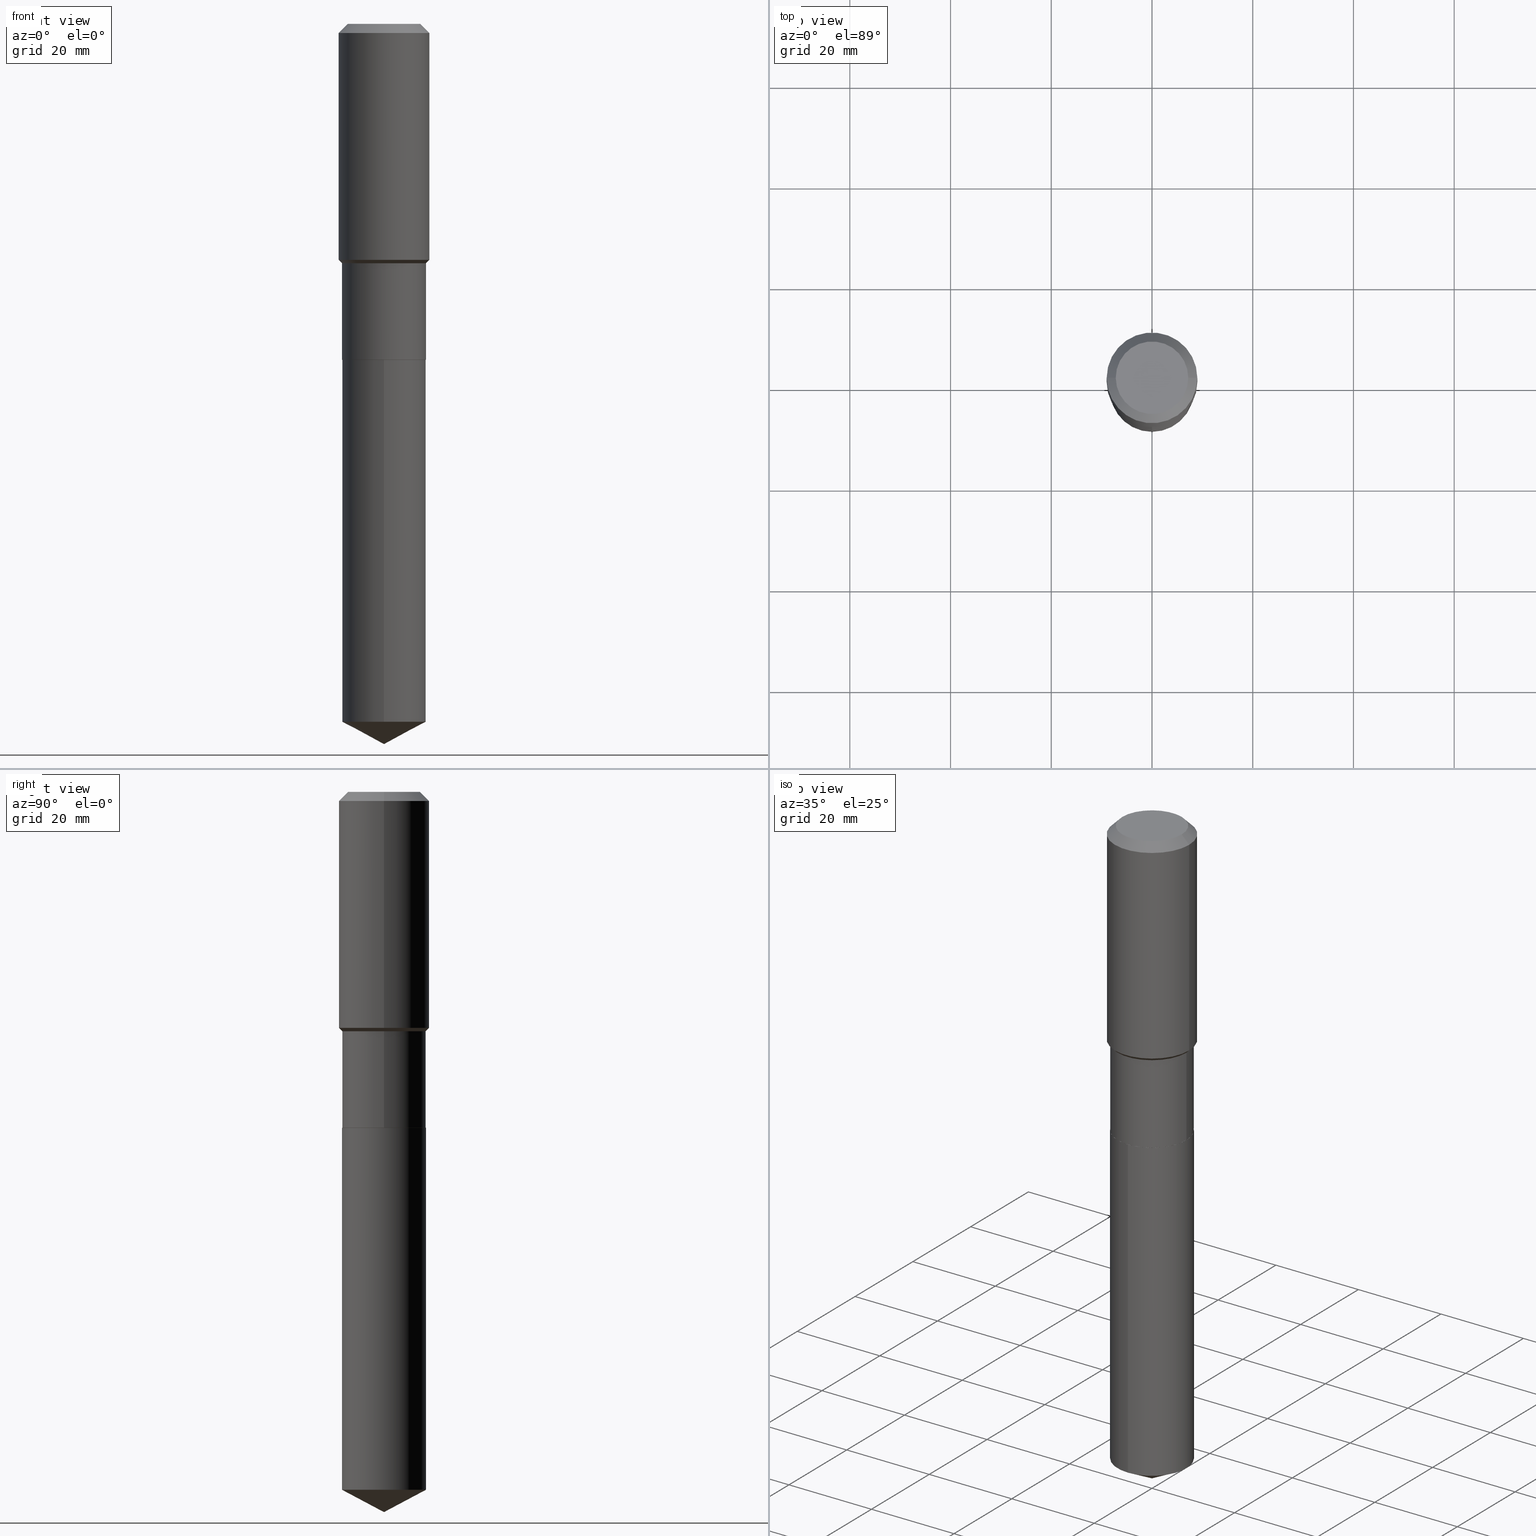
[diagram: canonical four-view strip — front | top / right | iso, engineering-drawing reading convention]
A machine part, canonical four-view strip (front | top / right | iso — engineering-drawing reading convention). The complete STEP part file that produces these views, byte-faithful:
ISO-10303-21;
HEADER;
FILE_DESCRIPTION (( 'STEP AP203' ),
    '1' );
FILE_NAME ('54833.STEP',
    '2024-04-24T16:07:48',
    ( '' ),
    ( '' ),
    'SwSTEP 2.0',
    'SolidWorks 2023',
    '' );
FILE_SCHEMA (( 'CONFIG_CONTROL_DESIGN' ));
ENDSEC;

DATA;
#1 = FACE_OUTER_BOUND ( 'NONE', #313, .T. ) ;
#2 = APPROVAL ( #112, 'UNSPECIFIED' ) ;
#3 = CIRCLE ( 'NONE', #115, 0.3280999999999998917 ) ;
#4 = LINE ( 'NONE', #305, #32 ) ;
#5 = ORIENTED_EDGE ( 'NONE', *, *, #123, .F. ) ;
#6 = ADVANCED_BREP_SHAPE_REPRESENTATION ( '54833', ( #314, #159, #14 ), #61 ) ;
#7 = CYLINDRICAL_SURFACE ( 'NONE', #278, 0.3281000000000000028 ) ;
#8 = ORIENTED_EDGE ( 'NONE', *, *, #477, .T. ) ;
#9 = VECTOR ( 'NONE', #478, 39.37007874015748854 ) ;
#10 = FACE_OUTER_BOUND ( 'NONE', #207, .T. ) ;
#11 = EDGE_CURVE ( 'NONE', #171, #158, #235, .T. ) ;
#12 = AXIS2_PLACEMENT_3D ( 'NONE', #274, #349, #18 ) ;
#13 = EDGE_LOOP ( 'NONE', ( #489, #146, #420, #275 ) ) ;
#14 = AXIS2_PLACEMENT_3D ( 'NONE', #228, #454, #223 ) ;
#15 = DIRECTION ( 'NONE',  ( 1.000000000000000000, -6.982962677686266711E-15, 4.876176775795935232E-29 ) ) ;
#16 = EDGE_CURVE ( 'NONE', #318, #209, #219, .T. ) ;
#17 = VERTEX_POINT ( 'NONE', #21 ) ;
#18 = DIRECTION ( 'NONE',  ( 1.000000000000000000, -6.982962677686269077E-15, 0.000000000000000000 ) ) ;
#19 = ORIENTED_EDGE ( 'NONE', *, *, #58, .F. ) ;
#20 = LINE ( 'NONE', #326, #463 ) ;
#21 = CARTESIAN_POINT ( 'NONE',  ( 1.376726645360118068E-28, -1.965807520774992515E-14, -5.629999999999999893 ) ) ;
#22 = AXIS2_PLACEMENT_3D ( 'NONE', #176, #97, #364 ) ;
#23 = ADVANCED_FACE ( 'NONE', ( #135 ), #203, .T. ) ;
#24 = FACE_OUTER_BOUND ( 'NONE', #469, .T. ) ;
#25 = CARTESIAN_POINT ( 'NONE',  ( -9.439721640706191963E-47, 1.347742071746725396E-32, 3.860086710912455110E-18 ) ) ;
#26 = EDGE_LOOP ( 'NONE', ( #285, #416, #5 ) ) ;
#27 = CC_DESIGN_PERSON_AND_ORGANIZATION_ASSIGNMENT ( #259, #452, ( #451 ) ) ;
#28 = DIRECTION ( 'NONE',  ( 0.7071067811865453523, -7.319954787623248157E-15, -0.7071067811865496822 ) ) ;
#29 = ORIENTED_EDGE ( 'NONE', *, *, #377, .T. ) ;
#30 = ADVANCED_FACE ( 'NONE', ( #66 ), #121, .T. ) ;
#31 = AXIS2_PLACEMENT_3D ( 'NONE', #63, #252, #447 ) ;
#32 = VECTOR ( 'NONE', #461, 39.37007874015748143 ) ;
#33 = CARTESIAN_POINT ( 'NONE',  ( 1.733103742943417062E-30, -2.474412824838152853E-16, -0.07087000000000043265 ) ) ;
#34 = LINE ( 'NONE', #437, #140 ) ;
#35 = CC_DESIGN_DATE_AND_TIME_ASSIGNMENT ( #264, #77, ( #361 ) ) ;
#36 = APPLICATION_PROTOCOL_DEFINITION ( 'international standard', 'config_control_design', 1994, #37 ) ;
#37 = APPLICATION_CONTEXT ( 'configuration controlled 3d designs of mechanical parts and assemblies' ) ;
#38 = AXIS2_PLACEMENT_3D ( 'NONE', #396, #443, #213 ) ;
#39 = EDGE_CURVE ( 'NONE', #202, #85, #34, .T. ) ;
#40 = AXIS2_PLACEMENT_3D ( 'NONE', #401, #315, #395 ) ;
#41 = CARTESIAN_POINT ( 'NONE',  ( 0.000000000000000000, 0.000000000000000000, 0.000000000000000000 ) ) ;
#42 = VERTEX_POINT ( 'NONE', #215 ) ;
#43 = LOCAL_TIME ( 12, 7, 48.00000000000000000, #104 ) ;
#44 = CARTESIAN_POINT ( 'NONE',  ( 1.733103742943417062E-30, -2.474412824838152853E-16, -0.07087000000000043265 ) ) ;
#45 = ORIENTED_EDGE ( 'NONE', *, *, #419, .F. ) ;
#46 = ADVANCED_FACE ( 'NONE', ( #24 ), #310, .T. ) ;
#47 = DIRECTION ( 'NONE',  ( 2.445468806185136597E-29, -3.491481338843145583E-15, -1.000000000000000000 ) ) ;
#48 = ORIENTED_EDGE ( 'NONE', *, *, #114, .F. ) ;
#49 = DIRECTION ( 'NONE',  ( -2.445468806185136597E-29, 3.491481338843145583E-15, 1.000000000000000000 ) ) ;
#50 = AXIS2_PLACEMENT_3D ( 'NONE', #44, #47, #199 ) ;
#51 = ORIENTED_EDGE ( 'NONE', *, *, #162, .T. ) ;
#52 = VECTOR ( 'NONE', #139, 39.37007874015748143 ) ;
#53 = CYLINDRICAL_SURFACE ( 'NONE', #221, 0.3281000000000000028 ) ;
#54 = ORIENTED_EDGE ( 'NONE', *, *, #308, .F. ) ;
#55 = PRODUCT ( '54833', '54833', '', ( #293 ) ) ;
#56 = DIRECTION ( 'NONE',  ( -2.445468806185136597E-29, 3.491481338843145583E-15, 1.000000000000000000 ) ) ;
#57 = VERTEX_POINT ( 'NONE', #475 ) ;
#58 = EDGE_CURVE ( 'NONE', #164, #57, #88, .T. ) ;
#59 = VERTEX_POINT ( 'NONE', #331 ) ;
#60 = AXIS2_PLACEMENT_3D ( 'NONE', #188, #110, #334 ) ;
#61 =( GEOMETRIC_REPRESENTATION_CONTEXT ( 3 ) GLOBAL_UNCERTAINTY_ASSIGNED_CONTEXT ( ( #271 ) ) GLOBAL_UNIT_ASSIGNED_CONTEXT ( ( #476, #373, #149 ) ) REPRESENTATION_CONTEXT ( 'NONE', 'WORKASPACE' ) );
#62 = DIRECTION ( 'NONE',  ( -2.445340400284401778E-29, 3.491665223401407561E-15, 1.000000000000000000 ) ) ;
#63 = CARTESIAN_POINT ( 'NONE',  ( 6.419844709997221136E-29, -9.165836810731026791E-15, -2.625199999999999978 ) ) ;
#64 = ADVANCED_FACE ( 'NONE', ( #480 ), #155, .T. ) ;
#65 = CARTESIAN_POINT ( 'NONE',  ( -0.3280999999999998917, -5.516337315221906286E-15, -1.870600000000000041 ) ) ;
#66 = FACE_OUTER_BOUND ( 'NONE', #296, .T. ) ;
#67 = CARTESIAN_POINT ( 'NONE',  ( 0.000000000000000000, 0.000000000000000000, 0.000000000000000000 ) ) ;
#68 = DIRECTION ( 'NONE',  ( -0.7071067811865474617, 7.493145998870352582E-15, 0.7071067811865474617 ) ) ;
#69 = AXIS2_PLACEMENT_3D ( 'NONE', #33, #257, #95 ) ;
#70 = PERSON_AND_ORGANIZATION_ROLE ( 'design_owner' ) ;
#71 = FACE_OUTER_BOUND ( 'NONE', #343, .T. ) ;
#72 = COORDINATED_UNIVERSAL_TIME_OFFSET ( 5, 0, .BEHIND. ) ;
#73 = ORIENTED_EDGE ( 'NONE', *, *, #290, .T. ) ;
#74 = PERSON_AND_ORGANIZATION ( #356, #125 ) ;
#75 = CARTESIAN_POINT ( 'NONE',  ( -8.250564056091332226E-28, 1.178095423055754312E-13, 33.74007874015748598 ) ) ;
#76 = CIRCLE ( 'NONE', #456, 0.3281000000000000028 ) ;
#77 = DATE_TIME_ROLE ( 'classification_date' ) ;
#78 = DIRECTION ( 'NONE',  ( -2.445468806185136597E-29, 3.491481338843145583E-15, 1.000000000000000000 ) ) ;
#79 = EDGE_CURVE ( 'NONE', #209, #309, #166, .T. ) ;
#80 = EDGE_CURVE ( 'NONE', #17, #268, #247, .T. ) ;
#81 = DIRECTION ( 'NONE',  ( -2.445468806185136597E-29, 3.491481338843145583E-15, 1.000000000000000000 ) ) ;
#82 = AXIS2_PLACEMENT_3D ( 'NONE', #321, #292, #483 ) ;
#83 = DIRECTION ( 'NONE',  ( -2.445468806185136597E-29, 3.491481338843145583E-15, 1.000000000000000000 ) ) ;
#84 = EDGE_LOOP ( 'NONE', ( #244, #467, #133, #345 ) ) ;
#85 = VERTEX_POINT ( 'NONE', #103 ) ;
#86 = DIRECTION ( 'NONE',  ( -6.982962677686265133E-15, -1.000000000000000000, 3.330506545156066257E-15 ) ) ;
#87 = ORIENTED_EDGE ( 'NONE', *, *, #256, .T. ) ;
#88 = CIRCLE ( 'NONE', #367, 0.3276000000000000023 ) ;
#89 = DIRECTION ( 'NONE',  ( 0.7071067811865474617, -2.468850131082256666E-15, 0.7071067811865474617 ) ) ;
#90 = CIRCLE ( 'NONE', #439, 0.3276000000000000023 ) ;
#91 = EDGE_LOOP ( 'NONE', ( #409, #217, #270, #54 ) ) ;
#92 = DIRECTION ( 'NONE',  ( 0.7071067811860163310, -2.468850131076692830E-15, 0.7071067811870787034 ) ) ;
#93 = ADVANCED_FACE ( 'NONE', ( #486 ), #394, .T. ) ;
#94 = ORIENTED_EDGE ( 'NONE', *, *, #288, .F. ) ;
#95 = DIRECTION ( 'NONE',  ( 1.000000000000000000, -6.982962677686266711E-15, 0.000000000000000000 ) ) ;
#96 = DIRECTION ( 'NONE',  ( -2.445340400284401778E-29, 3.491665223401407956E-15, 1.000000000000000000 ) ) ;
#97 = DIRECTION ( 'NONE',  ( -2.445468806185136597E-29, 3.491481338843145583E-15, 1.000000000000000000 ) ) ;
#98 = ADVANCED_FACE ( 'NONE', ( #113 ), #301, .T. ) ;
#99 = LOCAL_TIME ( 12, 7, 48.00000000000000000, #72 ) ;
#100 = LINE ( 'NONE', #397, #381 ) ;
#101 = ORIENTED_EDGE ( 'NONE', *, *, #11, .T. ) ;
#102 = DIRECTION ( 'NONE',  ( -0.7071067811860163310, 7.493145998868434073E-15, 0.7071067811870787034 ) ) ;
#103 = CARTESIAN_POINT ( 'NONE',  ( 0.3280999999999998917, -8.822275046988852801E-15, -1.870600000000000041 ) ) ;
#104 = COORDINATED_UNIVERSAL_TIME_OFFSET ( 5, 0, .BEHIND. ) ;
#105 = PERSON_AND_ORGANIZATION ( #356, #125 ) ;
#106 = CC_DESIGN_APPROVAL ( #433, ( #361 ) ) ;
#107 = DIRECTION ( 'NONE',  ( 1.000000000000000000, -6.982962677686265922E-15, 4.876176775795935793E-29 ) ) ;
#108 = ADVANCED_FACE ( 'NONE', ( #455 ), #130, .T. ) ;
#109 = SECURITY_CLASSIFICATION_LEVEL ( 'unclassified' ) ;
#110 = DIRECTION ( 'NONE',  ( 2.438088387897960049E-29, -3.491481338843145188E-15, -1.000000000000000000 ) ) ;
#111 = CC_DESIGN_PERSON_AND_ORGANIZATION_ASSIGNMENT ( #151, #70, ( #55 ) ) ;
#112 = APPROVAL_STATUS ( 'not_yet_approved' ) ;
#113 = FACE_OUTER_BOUND ( 'NONE', #277, .T. ) ;
#114 = EDGE_CURVE ( 'NONE', #202, #174, #148, .T. ) ;
#115 = AXIS2_PLACEMENT_3D ( 'NONE', #458, #160, #122 ) ;
#116 = CARTESIAN_POINT ( 'NONE',  ( 3.362497591358698235E-29, -1.354413189801272439E-14, -2.625199999999999978 ) ) ;
#117 = CC_DESIGN_PERSON_AND_ORGANIZATION_ASSIGNMENT ( #185, #412, ( #361 ) ) ;
#118 = ORIENTED_EDGE ( 'NONE', *, *, #172, .T. ) ;
#119 = FACE_OUTER_BOUND ( 'NONE', #323, .T. ) ;
#120 = ORIENTED_EDGE ( 'NONE', *, *, #190, .F. ) ;
#121 = CONICAL_SURFACE ( 'NONE', #22, 0.3280999999999998917, 0.7853981633974482790 ) ;
#122 = DIRECTION ( 'NONE',  ( 1.000000000000000000, -6.982962677686269077E-15, 0.000000000000000000 ) ) ;
#123 = EDGE_CURVE ( 'NONE', #268, #380, #418, .T. ) ;
#124 = ORIENTED_EDGE ( 'NONE', *, *, #290, .F. ) ;
#125 = ORGANIZATION ( 'UNSPECIFIED', 'UNSPECIFIED', '' ) ;
#126 = PLANE ( 'NONE',  #390 ) ;
#127 = ORIENTED_EDGE ( 'NONE', *, *, #484, .T. ) ;
#128 = CARTESIAN_POINT ( 'NONE',  ( -2.291110054548730797E-15, -0.3281000000000190986, -5.455546135471868396 ) ) ;
#129 = ORIENTED_EDGE ( 'NONE', *, *, #353, .T. ) ;
#130 = CONICAL_SURFACE ( 'NONE', #193, 74.04434902938363905, 1.082104136236487157 ) ;
#131 = LENGTH_MEASURE_WITH_UNIT ( LENGTH_MEASURE( 0.02539999999999999897 ), #468 );
#132 = CIRCLE ( 'NONE', #195, 0.3281000000000000028 ) ;
#133 = ORIENTED_EDGE ( 'NONE', *, *, #180, .F. ) ;
#134 = LINE ( 'NONE', #393, #375 ) ;
#135 = FACE_OUTER_BOUND ( 'NONE', #91, .T. ) ;
#136 = DIRECTION ( 'NONE',  ( -2.445468806185136597E-29, 3.491481338843145583E-15, 1.000000000000000000 ) ) ;
#137 = VERTEX_POINT ( 'NONE', #450 ) ;
#138 = ADVANCED_FACE ( 'NONE', ( #71 ), #413, .T. ) ;
#139 = DIRECTION ( 'NONE',  ( -2.445340400284401778E-29, 3.491665223401407561E-15, 1.000000000000000000 ) ) ;
#140 = VECTOR ( 'NONE', #398, 39.37007874015748143 ) ;
#141 = CARTESIAN_POINT ( 'NONE',  ( 1.733103742943417062E-30, -2.474412824838152853E-16, -0.07087000000000043265 ) ) ;
#142 = CIRCLE ( 'NONE', #12, 0.3280999999999998917 ) ;
#143 = CYLINDRICAL_SURFACE ( 'NONE', #430, 0.3543500000000001648 ) ;
#144 = CARTESIAN_POINT ( 'NONE',  ( 1.376726645360117844E-28, -1.965807520774992830E-14, -5.629999999999999893 ) ) ;
#145 = CALENDAR_DATE ( 2024, 24, 4 ) ;
#146 = ORIENTED_EDGE ( 'NONE', *, *, #16, .T. ) ;
#147 = DATE_AND_TIME ( #145, #328 ) ;
#148 = CIRCLE ( 'NONE', #470, 0.3281000000000000028 ) ;
#149 =( NAMED_UNIT ( * ) SI_UNIT ( $, .STERADIAN. ) SOLID_ANGLE_UNIT ( ) );
#150 = DIRECTION ( 'NONE',  ( -6.982962677686267499E-15, -1.000000000000000000, 3.541896320645556136E-15 ) ) ;
#151 = PERSON_AND_ORGANIZATION ( #356, #125 ) ;
#152 = DIRECTION ( 'NONE',  ( -6.982962677686265133E-15, -1.000000000000000000, 3.330506545156066257E-15 ) ) ;
#153 = ADVANCED_FACE ( 'NONE', ( #1 ), #154, .F. ) ;
#154 = PLANE ( 'NONE',  #60 ) ;
#155 = CONICAL_SURFACE ( 'NONE', #218, 0.3543499999999999983, 0.7853981633974452814 ) ;
#156 = CIRCLE ( 'NONE', #69, 0.3543499999999999983 ) ;
#157 = LOCAL_TIME ( 12, 7, 48.00000000000000000, #295 ) ;
#158 = VERTEX_POINT ( 'NONE', #488 ) ;
#159 = MANIFOLD_SOLID_BREP ( 'Body-Move/Copy2[2]', #448 ) ;
#160 = DIRECTION ( 'NONE',  ( -2.445468806185136597E-29, 3.491481338843145583E-15, 1.000000000000000000 ) ) ;
#161 = ORIENTED_EDGE ( 'NONE', *, *, #362, .T. ) ;
#162 = EDGE_CURVE ( 'NONE', #85, #309, #346, .T. ) ;
#163 = DIRECTION ( 'NONE',  ( -2.445340400284401778E-29, 3.491665223401407956E-15, 1.000000000000000000 ) ) ;
#164 = VERTEX_POINT ( 'NONE', #241 ) ;
#165 = DIMENSIONAL_EXPONENTS ( 1.000000000000000000, 0.000000000000000000, 0.000000000000000000, 0.000000000000000000, 0.000000000000000000, 0.000000000000000000, 0.000000000000000000 ) ;
#166 = CIRCLE ( 'NONE', #82, 0.3543500000000002204 ) ;
#167 = CIRCLE ( 'NONE', #481, 0.2834800000000000098 ) ;
#168 = ORIENTED_EDGE ( 'NONE', *, *, #80, .T. ) ;
#169 = VECTOR ( 'NONE', #62, 39.37007874015748143 ) ;
#170 = DIRECTION ( 'NONE',  ( 1.000000000000000000, -6.982962677686266711E-15, 4.876249319814053138E-29 ) ) ;
#171 = VERTEX_POINT ( 'NONE', #351 ) ;
#172 = EDGE_CURVE ( 'NONE', #309, #209, #265, .T. ) ;
#173 = CARTESIAN_POINT ( 'NONE',  ( 4.510300392687555505E-29, -6.439513607295354622E-15, -1.844349999999999712 ) ) ;
#174 = VERTEX_POINT ( 'NONE', #342 ) ;
#175 = DIRECTION ( 'NONE',  ( 6.982962677686265922E-15, 1.000000000000000000, -3.491665223401407561E-15 ) ) ;
#176 = CARTESIAN_POINT ( 'NONE',  ( 4.574493948849916372E-29, -6.531164992439988687E-15, -1.870600000000000041 ) ) ;
#177 = DIRECTION ( 'NONE',  ( -2.445468806185136597E-29, 3.491481338843145583E-15, 1.000000000000000000 ) ) ;
#178 = CARTESIAN_POINT ( 'NONE',  ( 6.419844709997221136E-29, -9.165836810731026791E-15, -2.625199999999999978 ) ) ;
#179 = DIRECTION ( 'NONE',  ( -2.445468806185136877E-29, 3.491481338843145188E-15, 1.000000000000000000 ) ) ;
#180 = EDGE_CURVE ( 'NONE', #85, #318, #3, .T. ) ;
#181 = ORIENTED_EDGE ( 'NONE', *, *, #16, .F. ) ;
#182 = DIRECTION ( 'NONE',  ( 1.000000000000000000, -6.982962677686269077E-15, 0.000000000000000000 ) ) ;
#183 = DIRECTION ( 'NONE',  ( 2.445468806185136597E-29, -3.491481338843145583E-15, -1.000000000000000000 ) ) ;
#184 = AXIS2_PLACEMENT_3D ( 'NONE', #344, #163, #307 ) ;
#185 = PERSON_AND_ORGANIZATION ( #356, #125 ) ;
#186 = DIRECTION ( 'NONE',  ( 1.000000000000000000, -6.982962677686264344E-15, 0.000000000000000000 ) ) ;
#187 = APPROVAL_STATUS ( 'not_yet_approved' ) ;
#188 = CARTESIAN_POINT ( 'NONE',  ( -4.719860820353095981E-47, 6.738710358733626979E-33, 1.930043355456227555E-18 ) ) ;
#189 = ORIENTED_EDGE ( 'NONE', *, *, #250, .F. ) ;
#190 = EDGE_CURVE ( 'NONE', #318, #85, #142, .T. ) ;
#191 = APPROVAL_DATE_TIME ( #147, #238 ) ;
#192 = CARTESIAN_POINT ( 'NONE',  ( 1.334100446185541204E-28, -1.904845798214671916E-14, -5.455546135471870173 ) ) ;
#193 = AXIS2_PLACEMENT_3D ( 'NONE', #75, #408, #150 ) ;
#194 = DESIGN_CONTEXT ( 'detailed design', #37, 'design' ) ;
#195 = AXIS2_PLACEMENT_3D ( 'NONE', #272, #385, #216 ) ;
#196 = FACE_OUTER_BOUND ( 'NONE', #289, .T. ) ;
#197 = ORIENTED_EDGE ( 'NONE', *, *, #79, .T. ) ;
#198 = ADVANCED_FACE ( 'NONE', ( #10 ), #126, .F. ) ;
#199 = DIRECTION ( 'NONE',  ( -1.000000000000000000, 6.982962677686266711E-15, 0.000000000000000000 ) ) ;
#200 = EDGE_LOOP ( 'NONE', ( #460, #29, #101, #368 ) ) ;
#201 = DIRECTION ( 'NONE',  ( 1.000000000000000000, -6.982962677686265922E-15, 4.876176775795935793E-29 ) ) ;
#202 = VERTEX_POINT ( 'NONE', #459 ) ;
#203 = CONICAL_SURFACE ( 'NONE', #31, 0.3276000000000000023, 0.7853981633966971021 ) ;
#204 = VECTOR ( 'NONE', #89, 39.37007874015748854 ) ;
#205 = DIRECTION ( 'NONE',  ( -2.445340400284401778E-29, 3.491665223401407956E-15, 1.000000000000000000 ) ) ;
#206 = ADVANCED_FACE ( 'NONE', ( #423 ), #7, .T. ) ;
#207 = EDGE_LOOP ( 'NONE', ( #441, #19 ) ) ;
#208 = DIRECTION ( 'NONE',  ( -2.445468806185136877E-29, 3.491481338843145188E-15, 1.000000000000000000 ) ) ;
#209 = VERTEX_POINT ( 'NONE', #234 ) ;
#210 = DIRECTION ( 'NONE',  ( -6.982962677686265133E-15, -1.000000000000000000, 3.330506545156066257E-15 ) ) ;
#211 = CARTESIAN_POINT ( 'NONE',  ( 6.419844709997220015E-29, -9.165836810731023636E-15, -2.625199999999999534 ) ) ;
#212 = APPROVAL_ROLE ( '' ) ;
#213 = DIRECTION ( 'NONE',  ( 1.000000000000000000, -6.982962677686266711E-15, 0.000000000000000000 ) ) ;
#214 = FACE_OUTER_BOUND ( 'NONE', #13, .T. ) ;
#215 = CARTESIAN_POINT ( 'NONE',  ( 0.2834800000000000098, -2.311636360201216027E-15, 3.860086710927458874E-18 ) ) ;
#216 = DIRECTION ( 'NONE',  ( 1.000000000000000000, -6.982962677686264344E-15, 0.000000000000000000 ) ) ;
#217 = ORIENTED_EDGE ( 'NONE', *, *, #58, .T. ) ;
#218 = AXIS2_PLACEMENT_3D ( 'NONE', #141, #183, #327 ) ;
#219 = LINE ( 'NONE', #360, #428 ) ;
#220 = ADVANCED_FACE ( 'NONE', ( #196 ), #53, .T. ) ;
#221 = AXIS2_PLACEMENT_3D ( 'NONE', #387, #205, #86 ) ;
#222 = CC_DESIGN_APPROVAL ( #2, ( #451 ) ) ;
#223 = DIRECTION ( 'NONE',  ( 1.000000000000000000, 0.000000000000000000, 0.000000000000000000 ) ) ;
#224 = PRODUCT_DEFINITION_SHAPE ( 'NONE', 'NONE',  #388 ) ;
#225 = CALENDAR_DATE ( 2024, 24, 4 ) ;
#226 = CARTESIAN_POINT ( 'NONE',  ( 6.418621975594126092E-29, -9.164091070061601343E-15, -2.624699999999999367 ) ) ;
#227 = EDGE_CURVE ( 'NONE', #17, #380, #4, .T. ) ;
#228 = CARTESIAN_POINT ( 'NONE',  ( 0.000000000000000000, 0.000000000000000000, 0.000000000000000000 ) ) ;
#229 = CLOSED_SHELL ( 'NONE', ( #220, #108, #138, #93, #472 ) ) ;
#230 = CIRCLE ( 'NONE', #184, 0.3281000000000000028 ) ;
#231 = PERSON_AND_ORGANIZATION ( #356, #125 ) ;
#232 = CIRCLE ( 'NONE', #457, 0.2834800000000000098 ) ;
#233 = DIRECTION ( 'NONE',  ( 1.000000000000000000, -6.982962677686264344E-15, 0.000000000000000000 ) ) ;
#234 = CARTESIAN_POINT ( 'NONE',  ( -0.3543500000000002204, -3.921705423129438442E-15, -1.844349999999999712 ) ) ;
#235 = CIRCLE ( 'NONE', #38, 0.3543499999999999983 ) ;
#236 = DIRECTION ( 'NONE',  ( 1.000000000000000000, -6.982962677686264344E-15, 0.000000000000000000 ) ) ;
#237 = EDGE_LOOP ( 'NONE', ( #73, #306 ) ) ;
#238 = APPROVAL ( #187, 'UNSPECIFIED' ) ;
#239 = ORIENTED_EDGE ( 'NONE', *, *, #288, .T. ) ;
#240 = ADVANCED_FACE ( 'NONE', ( #119 ), #421, .T. ) ;
#241 = CARTESIAN_POINT ( 'NONE',  ( -0.3276000000000000023, -6.835449581206825787E-15, -2.625199999999999978 ) ) ;
#242 = ORIENTED_EDGE ( 'NONE', *, *, #425, .T. ) ;
#243 = DIRECTION ( 'NONE',  ( -2.445468806185136597E-29, 3.491481338843145583E-15, 1.000000000000000000 ) ) ;
#244 = ORIENTED_EDGE ( 'NONE', *, *, #114, .T. ) ;
#245 = VECTOR ( 'NONE', #251, 39.37007874015748143 ) ;
#246 = DIRECTION ( 'NONE',  ( -0.7071067811865453523, 2.468850131082234184E-15, -0.7071067811865496822 ) ) ;
#247 = LINE ( 'NONE', #144, #9 ) ;
#248 = CARTESIAN_POINT ( 'NONE',  ( 0.3543500000000002204, -8.913926432133485288E-15, -1.844349999999999712 ) ) ;
#249 = ORIENTED_EDGE ( 'NONE', *, *, #477, .F. ) ;
#250 = EDGE_CURVE ( 'NONE', #59, #42, #167, .T. ) ;
#251 = DIRECTION ( 'NONE',  ( -2.445468806185136877E-29, 3.491481338843145188E-15, 1.000000000000000000 ) ) ;
#252 = DIRECTION ( 'NONE',  ( -2.445468806185136597E-29, 3.491481338843145583E-15, 1.000000000000000000 ) ) ;
#253 = VECTOR ( 'NONE', #102, 39.37007874015748143 ) ;
#254 = PLANE ( 'NONE',  #473 ) ;
#255 = ORIENTED_EDGE ( 'NONE', *, *, #487, .F. ) ;
#256 = EDGE_CURVE ( 'NONE', #57, #164, #90, .T. ) ;
#257 = DIRECTION ( 'NONE',  ( -2.445468806185136597E-29, 3.491481338843145583E-15, 1.000000000000000000 ) ) ;
#258 = ORIENTED_EDGE ( 'NONE', *, *, #353, .F. ) ;
#259 = PERSON_AND_ORGANIZATION ( #356, #125 ) ;
#260 = DIRECTION ( 'NONE',  ( -2.445468806185136597E-29, 3.491481338843145583E-15, 1.000000000000000000 ) ) ;
#261 = PRODUCT_RELATED_PRODUCT_CATEGORY ( 'detail', '', ( #55 ) ) ;
#262 = PERSON_AND_ORGANIZATION_ROLE ( 'design_supplier' ) ;
#263 = ADVANCED_FACE ( 'NONE', ( #382 ), #340, .T. ) ;
#264 = DATE_AND_TIME ( #225, #99 ) ;
#265 = CIRCLE ( 'NONE', #303, 0.3543500000000002204 ) ;
#266 = CC_DESIGN_PERSON_AND_ORGANIZATION_ASSIGNMENT ( #74, #262, ( #451 ) ) ;
#267 = DIRECTION ( 'NONE',  ( 1.000000000000000000, -6.982962677686266711E-15, 4.876176775795935232E-29 ) ) ;
#268 = VERTEX_POINT ( 'NONE', #128 ) ;
#269 = CARTESIAN_POINT ( 'NONE',  ( 0.000000000000000000, 0.000000000000000000, 0.000000000000000000 ) ) ;
#270 = ORIENTED_EDGE ( 'NONE', *, *, #371, .T. ) ;
#271 = UNCERTAINTY_MEASURE_WITH_UNIT (LENGTH_MEASURE( 1.000000000000000082E-05 ), #476, 'distance_accuracy_value', 'NONE');
#272 = CARTESIAN_POINT ( 'NONE',  ( 6.418621975594126092E-29, -9.164091070061601343E-15, -2.624699999999999367 ) ) ;
#273 = ORIENTED_EDGE ( 'NONE', *, *, #227, .F. ) ;
#274 = CARTESIAN_POINT ( 'NONE',  ( 4.574493948849916372E-29, -6.531164992439988687E-15, -1.870600000000000041 ) ) ;
#275 = ORIENTED_EDGE ( 'NONE', *, *, #162, .F. ) ;
#276 = LINE ( 'NONE', #391, #403 ) ;
#277 = EDGE_LOOP ( 'NONE', ( #45, #197, #239, #258 ) ) ;
#278 = AXIS2_PLACEMENT_3D ( 'NONE', #41, #81, #267 ) ;
#279 = LINE ( 'NONE', #317, #348 ) ;
#280 = ORIENTED_EDGE ( 'NONE', *, *, #250, .T. ) ;
#281 = CC_DESIGN_APPROVAL ( #238, ( #388 ) ) ;
#282 = CARTESIAN_POINT ( 'NONE',  ( 2.331290716029022047E-15, 0.3280999999999810179, -5.455546135471871061 ) ) ;
#283 = DIRECTION ( 'NONE',  ( -2.445468806185136597E-29, 3.491481338843145583E-15, 1.000000000000000000 ) ) ;
#284 = DIRECTION ( 'NONE',  ( 1.000000000000000000, -6.982962677686265922E-15, 4.876176775795935793E-29 ) ) ;
#285 = ORIENTED_EDGE ( 'NONE', *, *, #80, .F. ) ;
#286 = DATE_AND_TIME ( #357, #297 ) ;
#287 = LINE ( 'NONE', #434, #169 ) ;
#288 = EDGE_CURVE ( 'NONE', #309, #171, #276, .T. ) ;
#289 = EDGE_LOOP ( 'NONE', ( #432, #8, #124, #427 ) ) ;
#290 = EDGE_CURVE ( 'NONE', #137, #383, #230, .T. ) ;
#291 = CARTESIAN_POINT ( 'NONE',  ( -0.3276000000000000023, -6.838098808380937777E-15, -2.625199999999999978 ) ) ;
#292 = DIRECTION ( 'NONE',  ( -2.445468806185136597E-29, 3.491481338843145583E-15, 1.000000000000000000 ) ) ;
#293 = MECHANICAL_CONTEXT ( 'NONE', #405, 'mechanical' ) ;
#294 = DIRECTION ( 'NONE',  ( -2.445468806185136597E-29, 3.491481338843145583E-15, 1.000000000000000000 ) ) ;
#295 = COORDINATED_UNIVERSAL_TIME_OFFSET ( 5, 0, .BEHIND. ) ;
#296 = EDGE_LOOP ( 'NONE', ( #181, #350, #51, #386 ) ) ;
#297 = LOCAL_TIME ( 12, 7, 48.00000000000000000, #400 ) ;
#298 = APPROVAL_ROLE ( '' ) ;
#299 = CARTESIAN_POINT ( 'NONE',  ( -8.250564056091332226E-28, 1.178095423055754312E-13, 33.74007874015748598 ) ) ;
#300 = PERSON_AND_ORGANIZATION ( #356, #125 ) ;
#301 = CYLINDRICAL_SURFACE ( 'NONE', #336, 0.3543500000000001648 ) ;
#302 = CARTESIAN_POINT ( 'NONE',  ( 0.000000000000000000, 0.000000000000000000, 0.000000000000000000 ) ) ;
#303 = AXIS2_PLACEMENT_3D ( 'NONE', #173, #243, #464 ) ;
#304 = ORIENTED_EDGE ( 'NONE', *, *, #384, .T. ) ;
#305 = CARTESIAN_POINT ( 'NONE',  ( 1.376794654772572362E-28, -1.965710974026522262E-14, -5.629999999999999893 ) ) ;
#306 = ORIENTED_EDGE ( 'NONE', *, *, #487, .T. ) ;
#307 = DIRECTION ( 'NONE',  ( -6.982962677686265133E-15, -1.000000000000000000, 3.330506545156066257E-15 ) ) ;
#308 = EDGE_CURVE ( 'NONE', #174, #202, #132, .T. ) ;
#309 = VERTEX_POINT ( 'NONE', #248 ) ;
#310 = CONICAL_SURFACE ( 'NONE', #438, 0.3276000000000000023, 0.7853981633966971021 ) ;
#311 = ORIENTED_EDGE ( 'NONE', *, *, #11, .F. ) ;
#312 = CARTESIAN_POINT ( 'NONE',  ( 6.419844709997221136E-29, -9.165836810731026791E-15, -2.625199999999999978 ) ) ;
#313 = EDGE_LOOP ( 'NONE', ( #280, #242 ) ) ;
#314 = MANIFOLD_SOLID_BREP ( 'Body-Move/Copy2[1]', #229 ) ;
#315 = DIRECTION ( 'NONE',  ( -2.445340400284401778E-29, 3.491665223401407956E-15, 1.000000000000000000 ) ) ;
#316 = ORIENTED_EDGE ( 'NONE', *, *, #362, .F. ) ;
#317 = CARTESIAN_POINT ( 'NONE',  ( 0.3276000000000000023, -1.145345538394104711E-14, -2.625199999999999978 ) ) ;
#318 = VERTEX_POINT ( 'NONE', #65 ) ;
#319 = APPROVAL_PERSON_ORGANIZATION ( #231, #433, #212 ) ;
#320 = LINE ( 'NONE', #363, #52 ) ;
#321 = CARTESIAN_POINT ( 'NONE',  ( 4.510300392687555505E-29, -6.439513607295354622E-15, -1.844349999999999712 ) ) ;
#322 = LINE ( 'NONE', #440, #245 ) ;
#323 = EDGE_LOOP ( 'NONE', ( #402, #422, #462, #120 ) ) ;
#324 = ADVANCED_FACE ( 'NONE', ( #214 ), #429, .T. ) ;
#325 = AXIS2_PLACEMENT_3D ( 'NONE', #299, #370, #338 ) ;
#326 = CARTESIAN_POINT ( 'NONE',  ( -0.3543499999999999983, 2.226971542354313655E-15, -0.07087000000000043265 ) ) ;
#327 = DIRECTION ( 'NONE',  ( -1.000000000000000000, 6.982962677686266711E-15, 0.000000000000000000 ) ) ;
#328 = LOCAL_TIME ( 12, 7, 48.00000000000000000, #333 ) ;
#329 = CC_DESIGN_DATE_AND_TIME_ASSIGNMENT ( #372, #330, ( #388 ) ) ;
#330 = DATE_TIME_ROLE ( 'creation_date' ) ;
#331 = CARTESIAN_POINT ( 'NONE',  ( -0.2834800000000000098, 2.103250901112408108E-15, 3.860086710898179346E-18 ) ) ;
#332 = APPROVAL_DATE_TIME ( #286, #433 ) ;
#333 = COORDINATED_UNIVERSAL_TIME_OFFSET ( 5, 0, .BEHIND. ) ;
#334 = DIRECTION ( 'NONE',  ( -1.000000000000000000, 6.982962677686265922E-15, -4.876176775795935793E-29 ) ) ;
#335 = CALENDAR_DATE ( 2024, 24, 4 ) ;
#336 = AXIS2_PLACEMENT_3D ( 'NONE', #302, #260, #107 ) ;
#337 = CC_DESIGN_SECURITY_CLASSIFICATION ( #361, ( #451 ) ) ;
#338 = DIRECTION ( 'NONE',  ( -6.982962677686267499E-15, -1.000000000000000000, 3.541896320645556136E-15 ) ) ;
#339 = DIRECTION ( 'NONE',  ( -6.982962677686265133E-15, -1.000000000000000000, 3.330506545156066257E-15 ) ) ;
#340 = CONICAL_SURFACE ( 'NONE', #50, 0.3543499999999999983, 0.7853981633974452814 ) ;
#341 = CIRCLE ( 'NONE', #40, 0.3281000000000000028 ) ;
#342 = CARTESIAN_POINT ( 'NONE',  ( -0.3281000000000000028, -5.516337315221906286E-15, -2.624699999999999367 ) ) ;
#343 = EDGE_LOOP ( 'NONE', ( #273, #168, #316 ) ) ;
#344 = CARTESIAN_POINT ( 'NONE',  ( 6.419844709997220015E-29, -9.165836810731023636E-15, -2.625199999999999534 ) ) ;
#345 = ORIENTED_EDGE ( 'NONE', *, *, #39, .F. ) ;
#346 = LINE ( 'NONE', #379, #204 ) ;
#347 = EDGE_LOOP ( 'NONE', ( #249, #161, #304, #255 ) ) ;
#348 = VECTOR ( 'NONE', #92, 39.37007874015748143 ) ;
#349 = DIRECTION ( 'NONE',  ( -2.445468806185136597E-29, 3.491481338843145583E-15, 1.000000000000000000 ) ) ;
#350 = ORIENTED_EDGE ( 'NONE', *, *, #190, .T. ) ;
#351 = CARTESIAN_POINT ( 'NONE',  ( 0.3543499999999999983, -2.721854107321943733E-15, -0.07087000000000043265 ) ) ;
#352 = ORIENTED_EDGE ( 'NONE', *, *, #419, .T. ) ;
#353 = EDGE_CURVE ( 'NONE', #158, #171, #156, .T. ) ;
#354 = DIRECTION ( 'NONE',  ( 2.445340400284401778E-29, -3.491665223401407561E-15, -1.000000000000000000 ) ) ;
#355 = ORIENTED_EDGE ( 'NONE', *, *, #411, .T. ) ;
#356 = PERSON ( 'UNSPECIFIED', 'UNSPECIFIED', 'UNSPECIFIED', ('UNSPECIFIED'), ('UNSPECIFIED'), ('UNSPECIFIED') ) ;
#357 = CALENDAR_DATE ( 2024, 24, 4 ) ;
#358 = AXIS2_PLACEMENT_3D ( 'NONE', #211, #96, #152 ) ;
#359 = CARTESIAN_POINT ( 'NONE',  ( 6.419844709997220015E-29, -9.165836810731023636E-15, -2.625199999999999534 ) ) ;
#360 = CARTESIAN_POINT ( 'NONE',  ( -0.3280999999999998917, -4.199874276411100352E-15, -1.870600000000000041 ) ) ;
#361 = SECURITY_CLASSIFICATION ( '', '', #109 ) ;
#362 = EDGE_CURVE ( 'NONE', #380, #268, #76, .T. ) ;
#363 = CARTESIAN_POINT ( 'NONE',  ( -2.291110054548799427E-15, -0.3281000000000091066, -2.625199999999998646 ) ) ;
#364 = DIRECTION ( 'NONE',  ( 1.000000000000000000, -6.982962677686269077E-15, 0.000000000000000000 ) ) ;
#365 = CARTESIAN_POINT ( 'NONE',  ( 4.574493948849916372E-29, -6.531164992439988687E-15, -1.870600000000000041 ) ) ;
#366 = CARTESIAN_POINT ( 'NONE',  ( 6.419844709997221136E-29, -9.165836810731026791E-15, -2.625199999999999978 ) ) ;
#367 = AXIS2_PLACEMENT_3D ( 'NONE', #366, #294, #435 ) ;
#368 = ORIENTED_EDGE ( 'NONE', *, *, #411, .F. ) ;
#369 = APPLICATION_PROTOCOL_DEFINITION ( 'international standard', 'config_control_design', 1994, #405 ) ;
#370 = DIRECTION ( 'NONE',  ( -2.445340400284401778E-29, 3.491665223401407956E-15, 1.000000000000000000 ) ) ;
#371 = EDGE_CURVE ( 'NONE', #57, #202, #279, .T. ) ;
#372 = DATE_AND_TIME ( #449, #157 ) ;
#373 =( NAMED_UNIT ( * ) PLANE_ANGLE_UNIT ( ) SI_UNIT ( $, .RADIAN. ) );
#374 = AXIS2_PLACEMENT_3D ( 'NONE', #269, #49, #15 ) ;
#375 = VECTOR ( 'NONE', #28, 39.37007874015748143 ) ;
#376 = APPROVAL_STATUS ( 'not_yet_approved' ) ;
#377 = EDGE_CURVE ( 'NONE', #42, #171, #134, .T. ) ;
#378 = DIRECTION ( 'NONE',  ( -2.445340400284401778E-29, 3.491665223401407956E-15, 1.000000000000000000 ) ) ;
#379 = CARTESIAN_POINT ( 'NONE',  ( 0.3280999999999998917, -8.822275046988852801E-15, -1.870600000000000041 ) ) ;
#380 = VERTEX_POINT ( 'NONE', #282 ) ;
#381 = VECTOR ( 'NONE', #179, 39.37007874015748143 ) ;
#382 = FACE_OUTER_BOUND ( 'NONE', #392, .T. ) ;
#383 = VERTEX_POINT ( 'NONE', #431 ) ;
#384 = EDGE_CURVE ( 'NONE', #268, #137, #320, .T. ) ;
#385 = DIRECTION ( 'NONE',  ( -2.445468806185136597E-29, 3.491481338843145583E-15, 1.000000000000000000 ) ) ;
#386 = ORIENTED_EDGE ( 'NONE', *, *, #79, .F. ) ;
#387 = CARTESIAN_POINT ( 'NONE',  ( 6.419844709997220015E-29, -9.165836810731023636E-15, -2.625199999999999534 ) ) ;
#388 = PRODUCT_DEFINITION ( 'UNKNOWN', '', #451, #194 ) ;
#389 = ORIENTED_EDGE ( 'NONE', *, *, #377, .F. ) ;
#390 = AXIS2_PLACEMENT_3D ( 'NONE', #116, #426, #201 ) ;
#391 = CARTESIAN_POINT ( 'NONE',  ( 0.3543500000000001648, -2.474412824838129483E-15, 1.727873240503290590E-29 ) ) ;
#392 = EDGE_LOOP ( 'NONE', ( #389, #189, #355, #129 ) ) ;
#393 = CARTESIAN_POINT ( 'NONE',  ( 0.3543499999999999983, -2.678458747994157430E-15, -0.07087000000000043265 ) ) ;
#394 = CYLINDRICAL_SURFACE ( 'NONE', #358, 0.3281000000000000028 ) ;
#395 = DIRECTION ( 'NONE',  ( -6.982962677686265133E-15, -1.000000000000000000, 3.330506545156066257E-15 ) ) ;
#396 = CARTESIAN_POINT ( 'NONE',  ( 1.733103742943417062E-30, -2.474412824838152853E-16, -0.07087000000000043265 ) ) ;
#397 = CARTESIAN_POINT ( 'NONE',  ( -0.3281000000000000028, 2.331290716028888729E-15, -1.613902603112634433E-29 ) ) ;
#398 = DIRECTION ( 'NONE',  ( -2.445468806185136877E-29, 3.491481338843145188E-15, 1.000000000000000000 ) ) ;
#399 = LINE ( 'NONE', #291, #253 ) ;
#400 = COORDINATED_UNIVERSAL_TIME_OFFSET ( 5, 0, .BEHIND. ) ;
#401 = CARTESIAN_POINT ( 'NONE',  ( 6.419844709997220015E-29, -9.165836810731023636E-15, -2.625199999999999534 ) ) ;
#402 = ORIENTED_EDGE ( 'NONE', *, *, #453, .F. ) ;
#403 = VECTOR ( 'NONE', #208, 39.37007874015748143 ) ;
#404 = PERSON_AND_ORGANIZATION ( #356, #125 ) ;
#405 = APPLICATION_CONTEXT ( 'configuration controlled 3d designs of mechanical parts and assemblies' ) ;
#406 = APPROVAL_PERSON_ORGANIZATION ( #105, #2, #298 ) ;
#407 = DATE_AND_TIME ( #335, #43 ) ;
#408 = DIRECTION ( 'NONE',  ( -2.445340400284401778E-29, 3.491665223401407956E-15, 1.000000000000000000 ) ) ;
#409 = ORIENTED_EDGE ( 'NONE', *, *, #484, .F. ) ;
#410 = PERSON_AND_ORGANIZATION_ROLE ( 'creator' ) ;
#411 = EDGE_CURVE ( 'NONE', #59, #158, #20, .T. ) ;
#412 = PERSON_AND_ORGANIZATION_ROLE ( 'classification_officer' ) ;
#413 = CONICAL_SURFACE ( 'NONE', #325, 74.04434902938363905, 1.082104136236487157 ) ;
#414 = APPROVAL_PERSON_ORGANIZATION ( #300, #238, #446 ) ;
#415 = CC_DESIGN_PERSON_AND_ORGANIZATION_ASSIGNMENT ( #404, #410, ( #388 ) ) ;
#416 = ORIENTED_EDGE ( 'NONE', *, *, #227, .T. ) ;
#417 = CARTESIAN_POINT ( 'NONE',  ( -9.439721640706191963E-47, 1.347742071746725396E-32, 3.860086710912455110E-18 ) ) ;
#418 = CIRCLE ( 'NONE', #490, 0.3281000000000000028 ) ;
#419 = EDGE_CURVE ( 'NONE', #209, #158, #322, .T. ) ;
#420 = ORIENTED_EDGE ( 'NONE', *, *, #172, .F. ) ;
#421 = CYLINDRICAL_SURFACE ( 'NONE', #374, 0.3281000000000000028 ) ;
#422 = ORIENTED_EDGE ( 'NONE', *, *, #308, .T. ) ;
#423 = FACE_OUTER_BOUND ( 'NONE', #84, .T. ) ;
#424 = ORIENTED_EDGE ( 'NONE', *, *, #371, .F. ) ;
#425 = EDGE_CURVE ( 'NONE', #42, #59, #232, .T. ) ;
#426 = DIRECTION ( 'NONE',  ( -2.438088387897960049E-29, 3.491481338843145188E-15, 1.000000000000000000 ) ) ;
#427 = ORIENTED_EDGE ( 'NONE', *, *, #384, .F. ) ;
#428 = VECTOR ( 'NONE', #68, 39.37007874015748854 ) ;
#429 = CONICAL_SURFACE ( 'NONE', #471, 0.3280999999999998917, 0.7853981633974482790 ) ;
#430 = AXIS2_PLACEMENT_3D ( 'NONE', #67, #136, #284 ) ;
#431 = CARTESIAN_POINT ( 'NONE',  ( 2.331290716029020864E-15, 0.3280999999999907324, -2.625200000000000866 ) ) ;
#432 = ORIENTED_EDGE ( 'NONE', *, *, #123, .T. ) ;
#433 = APPROVAL ( #376, 'UNSPECIFIED' ) ;
#434 = CARTESIAN_POINT ( 'NONE',  ( 2.331290716028952233E-15, 0.3280999999999908434, -2.625200000000000866 ) ) ;
#435 = DIRECTION ( 'NONE',  ( 1.000000000000000000, -6.982962677686264344E-15, 0.000000000000000000 ) ) ;
#436 = DIRECTION ( 'NONE',  ( 1.000000000000000000, -6.982962677686266711E-15, 4.876249319814053138E-29 ) ) ;
#437 = CARTESIAN_POINT ( 'NONE',  ( 0.3281000000000000028, -2.291110054548864114E-15, 1.599873600138646308E-29 ) ) ;
#438 = AXIS2_PLACEMENT_3D ( 'NONE', #178, #283, #186 ) ;
#439 = AXIS2_PLACEMENT_3D ( 'NONE', #312, #466, #236 ) ;
#440 = CARTESIAN_POINT ( 'NONE',  ( -0.3543500000000001648, 2.517808184165916180E-15, -1.743024649231826627E-29 ) ) ;
#441 = ORIENTED_EDGE ( 'NONE', *, *, #256, .F. ) ;
#442 = CARTESIAN_POINT ( 'NONE',  ( 1.334100446185541204E-28, -1.904845798214671916E-14, -5.455546135471870173 ) ) ;
#443 = DIRECTION ( 'NONE',  ( -2.445468806185136597E-29, 3.491481338843145583E-15, 1.000000000000000000 ) ) ;
#444 = SHAPE_DEFINITION_REPRESENTATION ( #224, #6 ) ;
#445 = ADVANCED_FACE ( 'NONE', ( #482 ), #143, .T. ) ;
#446 = APPROVAL_ROLE ( '' ) ;
#447 = DIRECTION ( 'NONE',  ( 1.000000000000000000, -6.982962677686264344E-15, 0.000000000000000000 ) ) ;
#448 = CLOSED_SHELL ( 'NONE', ( #46, #64, #445, #324, #206, #240, #30, #98, #263, #153, #198, #23 ) ) ;
#449 = CALENDAR_DATE ( 2024, 24, 4 ) ;
#450 = CARTESIAN_POINT ( 'NONE',  ( -2.291110054548799427E-15, -0.3281000000000091066, -2.625199999999998646 ) ) ;
#451 = PRODUCT_DEFINITION_FORMATION_WITH_SPECIFIED_SOURCE ( 'ANY', '', #55, .NOT_KNOWN. ) ;
#452 = PERSON_AND_ORGANIZATION_ROLE ( 'creator' ) ;
#453 = EDGE_CURVE ( 'NONE', #174, #318, #100, .T. ) ;
#454 = DIRECTION ( 'NONE',  ( 0.000000000000000000, 0.000000000000000000, 1.000000000000000000 ) ) ;
#455 = FACE_OUTER_BOUND ( 'NONE', #26, .T. ) ;
#456 = AXIS2_PLACEMENT_3D ( 'NONE', #442, #474, #210 ) ;
#457 = AXIS2_PLACEMENT_3D ( 'NONE', #25, #56, #436 ) ;
#458 = CARTESIAN_POINT ( 'NONE',  ( 4.574493948849916372E-29, -6.531164992439988687E-15, -1.870600000000000041 ) ) ;
#459 = CARTESIAN_POINT ( 'NONE',  ( 0.3281000000000000028, -1.145520112461046467E-14, -2.624699999999999367 ) ) ;
#460 = ORIENTED_EDGE ( 'NONE', *, *, #425, .F. ) ;
#461 = DIRECTION ( 'NONE',  ( 6.273719981627766865E-15, 0.8829475928589298750, 0.4694715627858851992 ) ) ;
#462 = ORIENTED_EDGE ( 'NONE', *, *, #39, .T. ) ;
#463 = VECTOR ( 'NONE', #246, 39.37007874015748143 ) ;
#464 = DIRECTION ( 'NONE',  ( 1.000000000000000000, -6.982962677686266711E-15, 0.000000000000000000 ) ) ;
#465 = EDGE_LOOP ( 'NONE', ( #118, #352, #311, #94 ) ) ;
#466 = DIRECTION ( 'NONE',  ( -2.445468806185136597E-29, 3.491481338843145583E-15, 1.000000000000000000 ) ) ;
#467 = ORIENTED_EDGE ( 'NONE', *, *, #453, .T. ) ;
#468 =( LENGTH_UNIT ( ) NAMED_UNIT ( * ) SI_UNIT ( $, .METRE. ) );
#469 = EDGE_LOOP ( 'NONE', ( #87, #127, #48, #424 ) ) ;
#470 = AXIS2_PLACEMENT_3D ( 'NONE', #226, #78, #233 ) ;
#471 = AXIS2_PLACEMENT_3D ( 'NONE', #365, #177, #182 ) ;
#472 = ADVANCED_FACE ( 'NONE', ( #479 ), #254, .F. ) ;
#473 = AXIS2_PLACEMENT_3D ( 'NONE', #359, #354, #175 ) ;
#474 = DIRECTION ( 'NONE',  ( -2.445340400284401778E-29, 3.491665223401407956E-15, 1.000000000000000000 ) ) ;
#475 = CARTESIAN_POINT ( 'NONE',  ( 0.3276000000000000023, -1.145345538394104711E-14, -2.625199999999999978 ) ) ;
#476 =( CONVERSION_BASED_UNIT ( 'INCH', #131 ) LENGTH_UNIT ( ) NAMED_UNIT ( #165 ) );
#477 = EDGE_CURVE ( 'NONE', #380, #383, #287, .T. ) ;
#478 = DIRECTION ( 'NONE',  ( -6.165590087286836818E-15, -0.8829475928589266553, 0.4694715627858914164 ) ) ;
#479 = FACE_OUTER_BOUND ( 'NONE', #237, .T. ) ;
#480 = FACE_OUTER_BOUND ( 'NONE', #200, .T. ) ;
#481 = AXIS2_PLACEMENT_3D ( 'NONE', #417, #83, #170 ) ;
#482 = FACE_OUTER_BOUND ( 'NONE', #465, .T. ) ;
#483 = DIRECTION ( 'NONE',  ( 1.000000000000000000, -6.982962677686266711E-15, 0.000000000000000000 ) ) ;
#484 = EDGE_CURVE ( 'NONE', #164, #174, #399, .T. ) ;
#485 = APPROVAL_DATE_TIME ( #407, #2 ) ;
#486 = FACE_OUTER_BOUND ( 'NONE', #347, .T. ) ;
#487 = EDGE_CURVE ( 'NONE', #383, #137, #341, .T. ) ;
#488 = CARTESIAN_POINT ( 'NONE',  ( -0.3543499999999999983, -8.256692607236688475E-16, -0.07087000000000043265 ) ) ;
#489 = ORIENTED_EDGE ( 'NONE', *, *, #180, .T. ) ;
#490 = AXIS2_PLACEMENT_3D ( 'NONE', #192, #378, #339 ) ;
ENDSEC;
END-ISO-10303-21;
